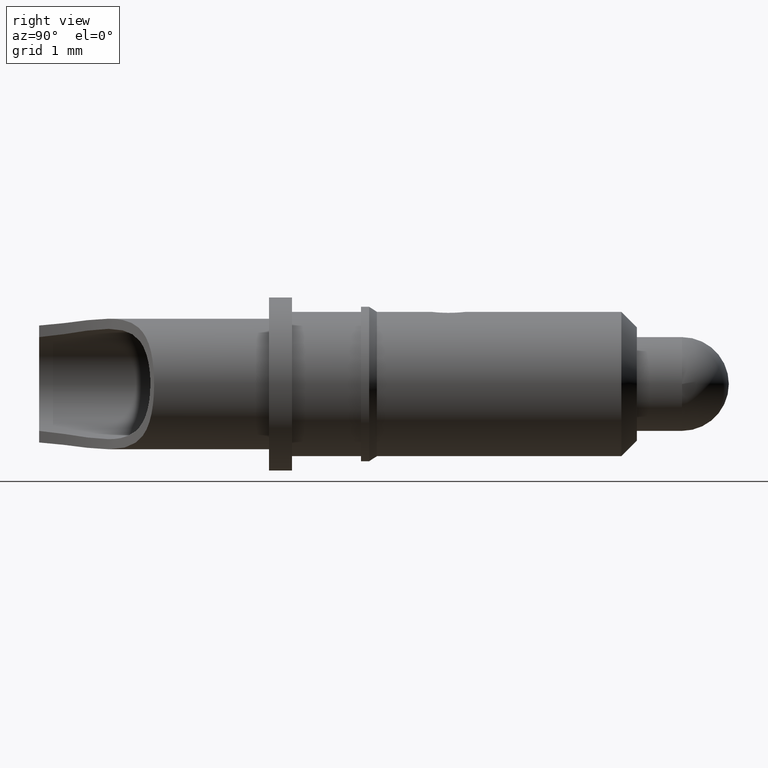
[diagram: clean part render]
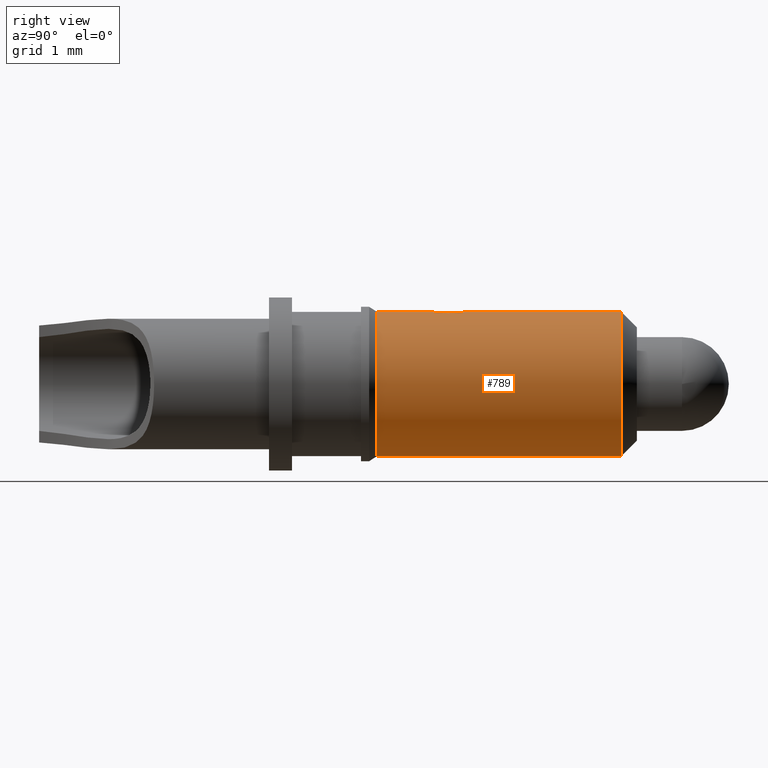
[diagram: same view with one face highlighted and labeled with its STEP entity id]
A machine part, right view. The second image highlights one B-rep face of the part: STEP entity #789.
In plain terms, the highlighted cylindrical surface (partial cylindrical patch) has radius 0.785 mm, axis along (-0, -1, -0).
Its self-contained STEP definition (entity closure, byte-faithful):
#25 = CYLINDRICAL_SURFACE ( 'NONE', #401, 0.7850000000000001400 ) ;
#43 = CARTESIAN_POINT ( 'NONE',  ( 0.08025693548080571600, -3.206456125337653300, 0.7811747132666526600 ) ) ;
#46 = DIRECTION ( 'NONE',  ( 0.0000000000000000000, 0.0000000000000000000, -1.000000000000000000 ) ) ;
#53 = DIRECTION ( 'NONE',  ( 0.0000000000000000000, 0.0000000000000000000, -1.000000000000000000 ) ) ;
#76 = EDGE_CURVE ( 'NONE', #409, #461, #745, .T. ) ;
#84 = ORIENTED_EDGE ( 'NONE', *, *, #921, .T. ) ;
#88 = CARTESIAN_POINT ( 'NONE',  ( 9.613477373306723600E-017, -7.500000000000000000, 0.7850000000000001400 ) ) ;
#89 = ORIENTED_EDGE ( 'NONE', *, *, #428, .T. ) ;
#107 = VECTOR ( 'NONE', #203, 1000.000000000000000 ) ;
#128 = ORIENTED_EDGE ( 'NONE', *, *, #141, .F. ) ;
#131 = CARTESIAN_POINT ( 'NONE',  ( 0.1311019365333434300, -3.090614092044149200, 0.7739749881261391900 ) ) ;
#141 = EDGE_CURVE ( 'NONE', #634, #521, #431, .T. ) ;
#203 = DIRECTION ( 'NONE',  ( -0.0000000000000000000, -1.000000000000000000, -0.0000000000000000000 ) ) ;
#208 = CARTESIAN_POINT ( 'NONE',  ( 0.0000000000000000000, -2.860121219378511300, 0.7850000000000001400 ) ) ;
#215 = FACE_OUTER_BOUND ( 'NONE', #655, .T. ) ;
#224 = CARTESIAN_POINT ( 'NONE',  ( 0.1310966271666700600, -3.006115171179225800, 0.7739758874494561100 ) ) ;
#244 = EDGE_CURVE ( 'NONE', #995, #854, #791, .T. ) ;
#260 = CARTESIAN_POINT ( 'NONE',  ( 9.613477373306723600E-017, -7.500000000000000000, 0.7850000000000001400 ) ) ;
#285 = CARTESIAN_POINT ( 'NONE',  ( 0.1223337034734712500, -3.133345312430742400, 0.7756994091363431700 ) ) ;
#294 = ORIENTED_EDGE ( 'NONE', *, *, #1016, .F. ) ;
#317 = DIRECTION ( 'NONE',  ( -0.0000000000000000000, -1.000000000000000000, -0.0000000000000000000 ) ) ;
#336 = ORIENTED_EDGE ( 'NONE', *, *, #244, .T. ) ;
#343 = DIRECTION ( 'NONE',  ( -0.0000000000000000000, -1.000000000000000000, -0.0000000000000000000 ) ) ;
#358 = CARTESIAN_POINT ( 'NONE',  ( 0.0000000000000000000, -7.500000000000000000, 0.0000000000000000000 ) ) ;
#364 = CARTESIAN_POINT ( 'NONE',  ( 0.04226241355653039000, -3.236643955416383700, 0.7850000000084875800 ) ) ;
#384 = CARTESIAN_POINT ( 'NONE',  ( 0.0000000000000000000, -3.827026094832439300, -0.7850000000000001400 ) ) ;
#389 = CARTESIAN_POINT ( 'NONE',  ( 9.613477373306723600E-017, -3.827026094832439300, 0.7850000000000001400 ) ) ;
#401 = AXIS2_PLACEMENT_3D ( 'NONE', #358, #527, #46 ) ;
#409 = VERTEX_POINT ( 'NONE', #724 ) ;
#428 = EDGE_CURVE ( 'NONE', #854, #409, #485, .T. ) ;
#431 = LINE ( 'NONE', #993, #622 ) ;
#461 = VERTEX_POINT ( 'NONE', #389 ) ;
#466 = CARTESIAN_POINT ( 'NONE',  ( 9.613477373306722300E-017, -1.168190774742366100, 0.7850000000000000300 ) ) ;
#485 = B_SPLINE_CURVE_WITH_KNOTS ( 'NONE', 3,
 ( #208, #895, #870, #788, #224, #131, #285, #43, #364, #976 ),
 .UNSPECIFIED., .F., .F.,
 ( 4, 2, 2, 2, 4 ),
 ( 0.0000000000000000000, 0.0001268968305481105500, 0.0002537936610962211000, 0.0003806904916443316300, 0.0005075873221924422000 ),
 .UNSPECIFIED. ) ;
#521 = VERTEX_POINT ( 'NONE', #384 ) ;
#527 = DIRECTION ( 'NONE',  ( -0.0000000000000000000, -1.000000000000000000, -0.0000000000000000000 ) ) ;
#578 = AXIS2_PLACEMENT_3D ( 'NONE', #1061, #823, #1072 ) ;
#591 = AXIS2_PLACEMENT_3D ( 'NONE', #1051, #712, #53 ) ;
#622 = VECTOR ( 'NONE', #317, 1000.000000000000000 ) ;
#634 = VERTEX_POINT ( 'NONE', #750 ) ;
#649 = CIRCLE ( 'NONE', #591, 0.7850000000000000300 ) ;
#655 = EDGE_LOOP ( 'NONE', ( #84, #336, #89, #933, #294, #128 ) ) ;
#712 = DIRECTION ( 'NONE',  ( -0.0000000000000000000, -1.000000000000000000, -0.0000000000000000000 ) ) ;
#724 = CARTESIAN_POINT ( 'NONE',  ( -4.683753385137379200E-014, -3.236643955370674500, 0.7850000000000001400 ) ) ;
#745 = LINE ( 'NONE', #88, #107 ) ;
#750 = CARTESIAN_POINT ( 'NONE',  ( 0.0000000000000000000, -1.168190774742366100, -0.7850000000000000300 ) ) ;
#780 = CARTESIAN_POINT ( 'NONE',  ( 0.0000000000000000000, -2.860121219378511300, 0.7850000000000001400 ) ) ;
#788 = CARTESIAN_POINT ( 'NONE',  ( 0.1223624537619077300, -2.963501380172103100, 0.7756947379496576000 ) ) ;
#789 = ADVANCED_FACE ( 'NONE', ( #215 ), #25, .T. ) ;
#791 = LINE ( 'NONE', #260, #1010 ) ;
#803 = CIRCLE ( 'NONE', #578, 0.7850000000000001400 ) ;
#823 = DIRECTION ( 'NONE',  ( -0.0000000000000000000, -1.000000000000000000, -0.0000000000000000000 ) ) ;
#854 = VERTEX_POINT ( 'NONE', #780 ) ;
#870 = CARTESIAN_POINT ( 'NONE',  ( 0.08029582297038941100, -2.890345106781548400, 0.7811705814909641900 ) ) ;
#895 = CARTESIAN_POINT ( 'NONE',  ( 0.04293890976234534400, -2.860121219378510800, 0.7850000000000001400 ) ) ;
#921 = EDGE_CURVE ( 'NONE', #634, #995, #649, .T. ) ;
#933 = ORIENTED_EDGE ( 'NONE', *, *, #76, .T. ) ;
#976 = CARTESIAN_POINT ( 'NONE',  ( -4.683753385137379200E-014, -3.236643955370674500, 0.7850000000000001400 ) ) ;
#993 = CARTESIAN_POINT ( 'NONE',  ( 0.0000000000000000000, -7.500000000000000000, -0.7850000000000001400 ) ) ;
#995 = VERTEX_POINT ( 'NONE', #466 ) ;
#1010 = VECTOR ( 'NONE', #343, 1000.000000000000000 ) ;
#1016 = EDGE_CURVE ( 'NONE', #521, #461, #803, .T. ) ;
#1051 = CARTESIAN_POINT ( 'NONE',  ( 0.0000000000000000000, -1.168190774742366100, 0.0000000000000000000 ) ) ;
#1061 = CARTESIAN_POINT ( 'NONE',  ( 0.0000000000000000000, -3.827026094832439300, 0.0000000000000000000 ) ) ;
#1072 = DIRECTION ( 'NONE',  ( 0.0000000000000000000, 0.0000000000000000000, -1.000000000000000000 ) ) ;